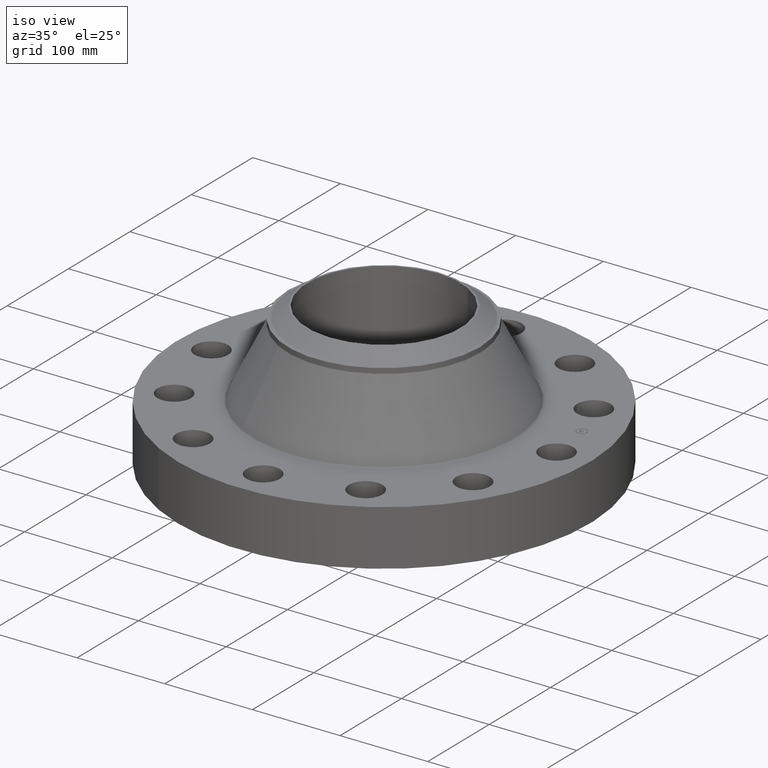
[diagram: clean part render]
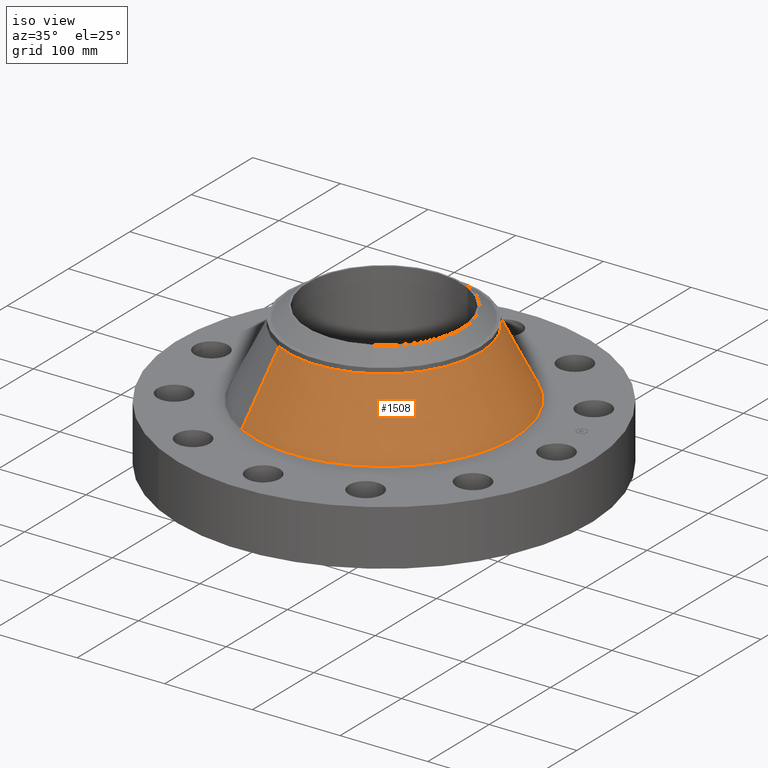
[diagram: same view with one face highlighted and labeled with its STEP entity id]
A machine part, iso view. The second image highlights one B-rep face of the part: STEP entity #1508.
In plain terms, the highlighted conical surface has half-angle 26.658 deg.
Its self-contained STEP definition (entity closure, byte-faithful):
#1327=AXIS2_PLACEMENT_3D('Circle Axis2P3D',#1325,#1326,$) ;
#1495=AXIS2_PLACEMENT_3D('Cone Axis2P3D',#1492,#1493,#1494) ;
#1499=AXIS2_PLACEMENT_3D('Circle Axis2P3D',#1497,#1498,$) ;
#1291=CARTESIAN_POINT('Vertex',(-2.80070118971,-5.12664913995,2.56616029439)) ;
#1298=CARTESIAN_POINT('Vertex',(2.80070118972,5.12664913995,2.56616029439)) ;
#1325=CARTESIAN_POINT('Axis2P3D Location',(0.,0.,2.56616029439)) ;
#1459=CARTESIAN_POINT('Line Origine',(-2.4347111944,-4.45670894726,4.08677286233)) ;
#1463=CARTESIAN_POINT('Vertex',(-2.06872119909,-3.78676875457,5.60738543027)) ;
#1470=CARTESIAN_POINT('Vertex',(2.06872119909,3.78676875457,5.60738543027)) ;
#1473=CARTESIAN_POINT('Line Origine',(2.4347111944,4.45670894726,4.08677286233)) ;
#1492=CARTESIAN_POINT('Axis2P3D Location',(0.,0.,5.60738543027)) ;
#1497=CARTESIAN_POINT('Axis2P3D Location',(0.,0.,5.60738543027)) ;
#1326=DIRECTION('Axis2P3D Direction',(-0.,0.,-0.0393700787402)) ;
#1460=DIRECTION('Vector Direction',(-0.00846854654416,-0.0155015704698,-0.0351850555265)) ;
#1474=DIRECTION('Vector Direction',(0.00846854654416,0.0155015704698,-0.0351850555265)) ;
#1493=DIRECTION('Axis2P3D Direction',(0.,0.,-0.0393700787402)) ;
#1494=DIRECTION('Axis2P3D XDirection',(0.0188750212049,0.0345504945626,0.)) ;
#1498=DIRECTION('Axis2P3D Direction',(-0.,0.,-0.0393700787402)) ;
#1461=VECTOR('Line Direction',#1460,0.0393700787402) ;
#1475=VECTOR('Line Direction',#1474,0.0393700787402) ;
#1503=ORIENTED_EDGE('',*,*,#1329,.F.) ;
#1504=ORIENTED_EDGE('',*,*,#1477,.T.) ;
#1505=ORIENTED_EDGE('',*,*,#1501,.T.) ;
#1506=ORIENTED_EDGE('',*,*,#1465,.F.) ;
#1508=ADVANCED_FACE('PartBody',(#1507),#1496,.T.) ;
#1328=CIRCLE('generated circle',#1327,5.8417855625) ;
#1500=CIRCLE('generated circle',#1499,4.31500000002) ;
#1496=CONICAL_SURFACE('Cone',#1495,4.31500000002,0.465270108095) ;
#1329=EDGE_CURVE('',#1299,#1292,#1328,.T.) ;
#1465=EDGE_CURVE('',#1292,#1464,#1462,.F.) ;
#1477=EDGE_CURVE('',#1299,#1471,#1476,.F.) ;
#1501=EDGE_CURVE('',#1471,#1464,#1500,.T.) ;
#1502=EDGE_LOOP('',(#1503,#1504,#1505,#1506)) ;
#1507=FACE_OUTER_BOUND('',#1502,.T.) ;
#1462=LINE('Line',#1459,#1461) ;
#1476=LINE('Line',#1473,#1475) ;
#1292=VERTEX_POINT('',#1291) ;
#1299=VERTEX_POINT('',#1298) ;
#1464=VERTEX_POINT('',#1463) ;
#1471=VERTEX_POINT('',#1470) ;